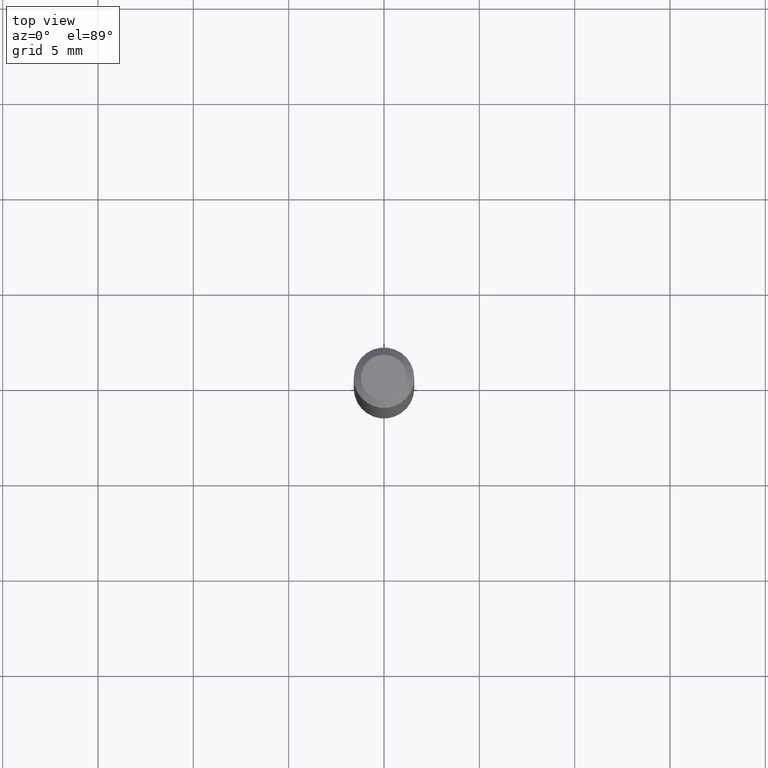
[diagram: clean part render]
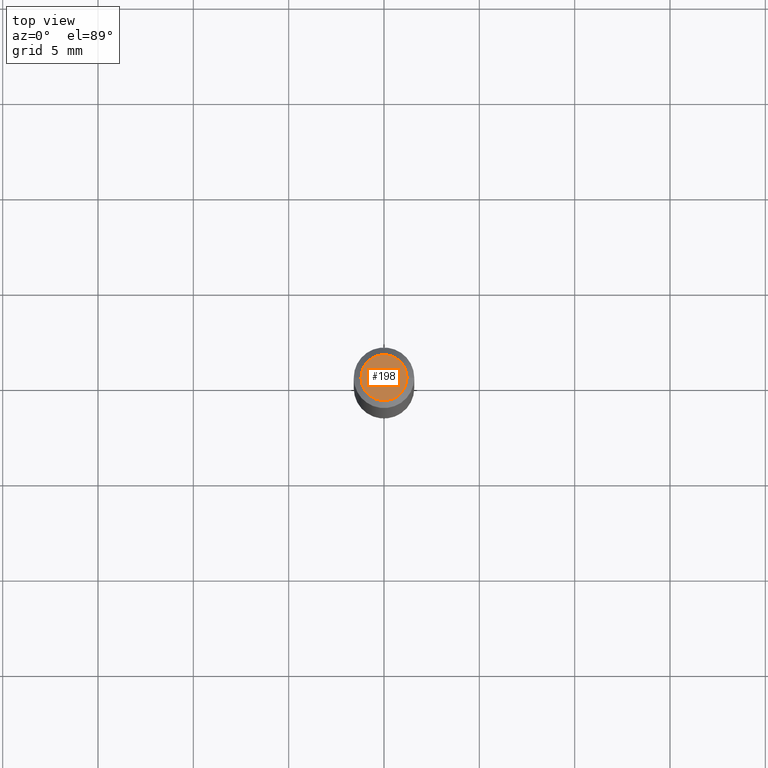
[diagram: same view with one face highlighted and labeled with its STEP entity id]
A machine part, top view. The second image highlights one B-rep face of the part: STEP entity #198.
In plain terms, the highlighted planar face has unit normal (0, -0, -1).
Its self-contained STEP definition (entity closure, byte-faithful):
#9 = ORIENTED_EDGE ( 'NONE', *, *, #408, .T. ) ;
#44 = DIRECTION ( 'NONE',  ( -1.000000000000000000, 6.982962677686265922E-15, -4.876176775795935793E-29 ) ) ;
#54 = AXIS2_PLACEMENT_3D ( 'NONE', #448, #273, #416 ) ;
#105 = AXIS2_PLACEMENT_3D ( 'NONE', #298, #227, #44 ) ;
#144 = CARTESIAN_POINT ( 'NONE',  ( -1.505681066337554235E-44, 2.149713515899588158E-30, 6.157024217726067260E-16 ) ) ;
#165 = CIRCLE ( 'NONE', #311, 0.04749999999999999362 ) ;
#190 = PLANE ( 'NONE',  #105 ) ;
#192 = VERTEX_POINT ( 'NONE', #279 ) ;
#196 = ORIENTED_EDGE ( 'NONE', *, *, #378, .T. ) ;
#198 = ADVANCED_FACE ( 'NONE', ( #417 ), #190, .F. ) ;
#205 = CARTESIAN_POINT ( 'NONE',  ( -0.04749999999999999362, 3.578768372314221353E-16, 6.157024217726043594E-16 ) ) ;
#212 = DIRECTION ( 'NONE',  ( 1.000000000000000000, -6.982962677686267499E-15, 4.852736867747366768E-29 ) ) ;
#227 = DIRECTION ( 'NONE',  ( 2.438088387897960049E-29, -3.491481338843145188E-15, -1.000000000000000000 ) ) ;
#273 = DIRECTION ( 'NONE',  ( -2.445468806185136597E-29, 3.491481338843145583E-15, 1.000000000000000000 ) ) ;
#279 = CARTESIAN_POINT ( 'NONE',  ( 0.04749999999999999362, -4.035134999187568269E-16, 6.157024217726092898E-16 ) ) ;
#298 = CARTESIAN_POINT ( 'NONE',  ( 3.316907271900976096E-16, 0.04749999999999999362, 1.420058472912539912E-16 ) ) ;
#311 = AXIS2_PLACEMENT_3D ( 'NONE', #144, #423, #212 ) ;
#312 = EDGE_LOOP ( 'NONE', ( #196, #9 ) ) ;
#314 = VERTEX_POINT ( 'NONE', #205 ) ;
#353 = CIRCLE ( 'NONE', #54, 0.04749999999999999362 ) ;
#378 = EDGE_CURVE ( 'NONE', #314, #192, #353, .T. ) ;
#408 = EDGE_CURVE ( 'NONE', #192, #314, #165, .T. ) ;
#416 = DIRECTION ( 'NONE',  ( 1.000000000000000000, -6.982962677686267499E-15, 4.852736867747366768E-29 ) ) ;
#417 = FACE_OUTER_BOUND ( 'NONE', #312, .T. ) ;
#423 = DIRECTION ( 'NONE',  ( -2.445468806185136597E-29, 3.491481338843145583E-15, 1.000000000000000000 ) ) ;
#448 = CARTESIAN_POINT ( 'NONE',  ( -1.505681066337554235E-44, 2.149713515899588158E-30, 6.157024217726067260E-16 ) ) ;